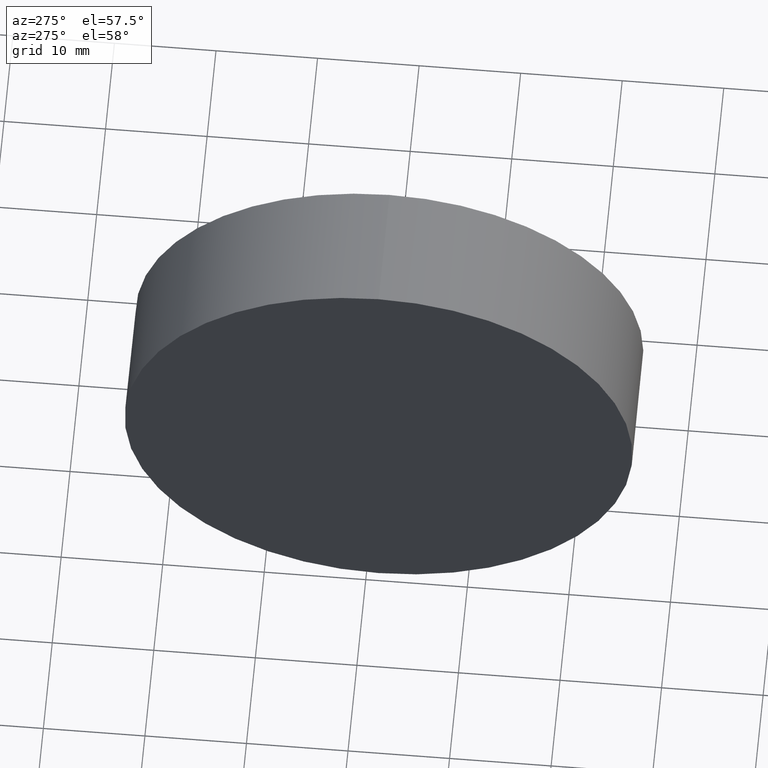
[diagram: clean part render]
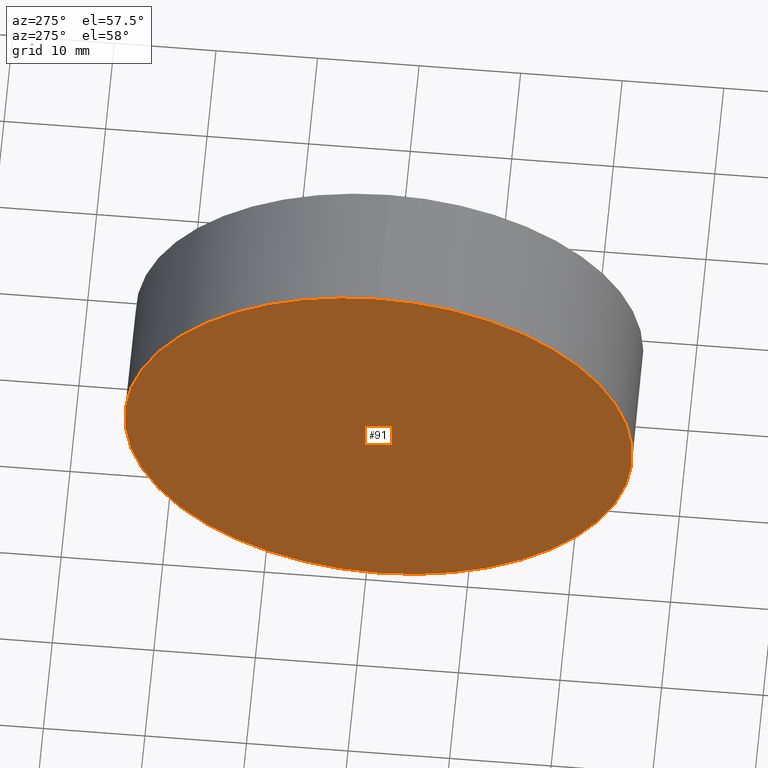
[diagram: same view with one face highlighted and labeled with its STEP entity id]
A machine part, auxiliary view. The second image highlights one B-rep face of the part: STEP entity #91.
In plain terms, the highlighted planar face has unit normal (1, 0, 0).
Its self-contained STEP definition (entity closure, byte-faithful):
#13 = DIRECTION ( 'NONE',  ( 1.000000000000000000, 0.0000000000000000000, 0.0000000000000000000 ) ) ;
#17 = AXIS2_PLACEMENT_3D ( 'NONE', #143, #56, #131 ) ;
#21 = AXIS2_PLACEMENT_3D ( 'NONE', #152, #13, #127 ) ;
#29 = ORIENTED_EDGE ( 'NONE', *, *, #86, .T. ) ;
#46 = AXIS2_PLACEMENT_3D ( 'NONE', #170, #68, #55 ) ;
#55 = DIRECTION ( 'NONE',  ( 0.0000000000000000000, 0.0000000000000000000, 1.000000000000000000 ) ) ;
#56 = DIRECTION ( 'NONE',  ( -1.000000000000000000, -0.0000000000000000000, -0.0000000000000000000 ) ) ;
#68 = DIRECTION ( 'NONE',  ( -1.000000000000000000, -0.0000000000000000000, -0.0000000000000000000 ) ) ;
#86 = EDGE_CURVE ( 'NONE', #114, #153, #105, .T. ) ;
#91 = ADVANCED_FACE ( 'NONE', ( #167 ), #101, .F. ) ;
#101 = PLANE ( 'NONE',  #21 ) ;
#105 = CIRCLE ( 'NONE', #46, 24.99999999999999300 ) ;
#114 = VERTEX_POINT ( 'NONE', #126 ) ;
#121 = EDGE_CURVE ( 'NONE', #153, #114, #124, .T. ) ;
#124 = CIRCLE ( 'NONE', #17, 24.99999999999999300 ) ;
#126 = CARTESIAN_POINT ( 'NONE',  ( 230.1853110698390300, 138.7560422467448700, 24.99999999999999300 ) ) ;
#127 = DIRECTION ( 'NONE',  ( 0.0000000000000000000, 0.0000000000000000000, -1.000000000000000000 ) ) ;
#131 = DIRECTION ( 'NONE',  ( 0.0000000000000000000, 0.0000000000000000000, 1.000000000000000000 ) ) ;
#143 = CARTESIAN_POINT ( 'NONE',  ( 230.1853110698390300, 138.7560422467448700, 0.0000000000000000000 ) ) ;
#149 = ORIENTED_EDGE ( 'NONE', *, *, #121, .T. ) ;
#152 = CARTESIAN_POINT ( 'NONE',  ( 230.1853110698390300, 138.7560422467448700, 0.0000000000000000000 ) ) ;
#153 = VERTEX_POINT ( 'NONE', #184 ) ;
#159 = EDGE_LOOP ( 'NONE', ( #29, #149 ) ) ;
#167 = FACE_OUTER_BOUND ( 'NONE', #159, .T. ) ;
#170 = CARTESIAN_POINT ( 'NONE',  ( 230.1853110698390300, 138.7560422467448700, 0.0000000000000000000 ) ) ;
#184 = CARTESIAN_POINT ( 'NONE',  ( 230.1853110698390300, 138.7560422467448700, -24.99999999999999300 ) ) ;